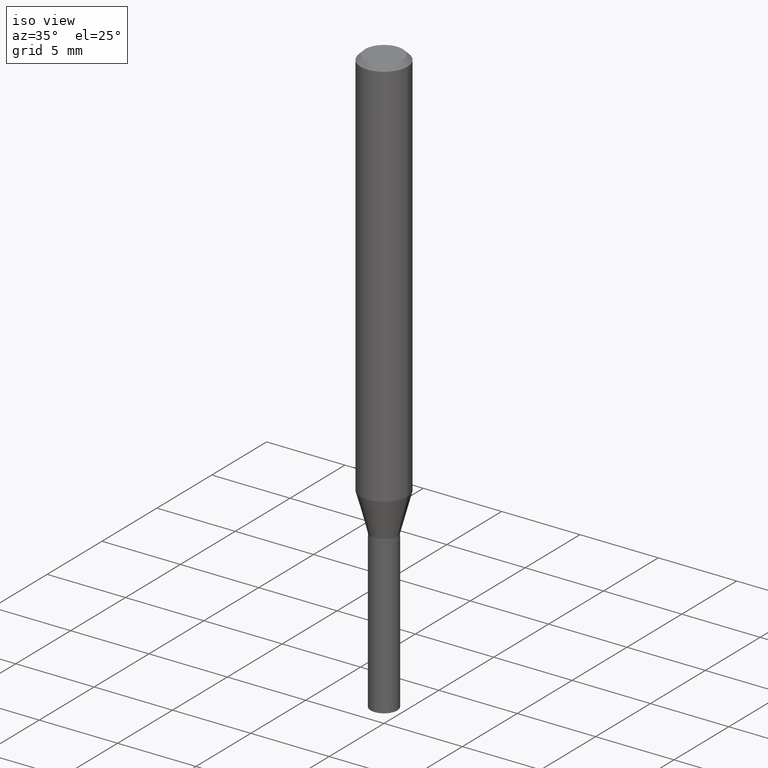
[diagram: clean part render]
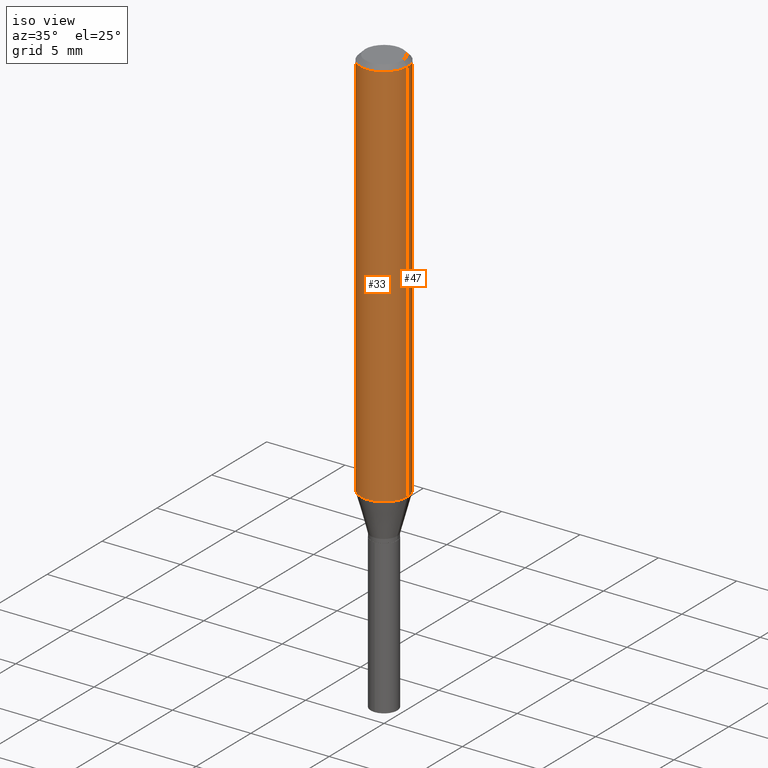
[diagram: same view with one multi-face feature highlighted, each face labeled with its STEP entity id]
A machine part, iso view. The highlighted faces form ONE feature: a constant-radius fillet chain: 2 tangent blend faces with common blend radius 1.4999 mm. The faces share edges in the B-rep.
Their STEP definitions:
[1] entity #33 (Cylinder):
#2 = EDGE_CURVE ( 'NONE', #275, #187, #239, .T. ) ;
#8 = FACE_OUTER_BOUND ( 'NONE', #338, .T. ) ;
#31 = DIRECTION ( 'NONE',  ( 1.000000000000000000, -6.982962677686266711E-15, 0.000000000000000000 ) ) ;
#33 = ADVANCED_FACE ( 'NONE', ( #8 ), #381, .T. ) ;
#49 = DIRECTION ( 'NONE',  ( 1.000000000000000000, -6.982962677686266711E-15, 4.876176775795935793E-29 ) ) ;
#58 = VECTOR ( 'NONE', #238, 39.37007874015748143 ) ;
#69 = ORIENTED_EDGE ( 'NONE', *, *, #266, .T. ) ;
#70 = EDGE_CURVE ( 'NONE', #187, #190, #242, .T. ) ;
#80 = ORIENTED_EDGE ( 'NONE', *, *, #387, .T. ) ;
#101 = CARTESIAN_POINT ( 'NONE',  ( -0.05905000000000011628, -3.030752074152826708E-15, -0.9882130891647225024 ) ) ;
#112 = ORIENTED_EDGE ( 'NONE', *, *, #70, .F. ) ;
#114 = DIRECTION ( 'NONE',  ( -2.445468806185136597E-29, 3.491481338843145583E-15, 1.000000000000000000 ) ) ;
#118 = LINE ( 'NONE', #276, #58 ) ;
#156 = DIRECTION ( 'NONE',  ( -2.445468806185136877E-29, 3.491481338843145188E-15, 1.000000000000000000 ) ) ;
#161 = CARTESIAN_POINT ( 'NONE',  ( 0.000000000000000000, 0.000000000000000000, 0.000000000000000000 ) ) ;
#186 = DIRECTION ( 'NONE',  ( -2.445468806185136597E-29, 3.491481338843145583E-15, 1.000000000000000000 ) ) ;
#187 = VERTEX_POINT ( 'NONE', #438 ) ;
#190 = VERTEX_POINT ( 'NONE', #478 ) ;
#191 = AXIS2_PLACEMENT_3D ( 'NONE', #161, #234, #49 ) ;
#234 = DIRECTION ( 'NONE',  ( -2.445468806185136597E-29, 3.491481338843145583E-15, 1.000000000000000000 ) ) ;
#235 = AXIS2_PLACEMENT_3D ( 'NONE', #302, #186, #31 ) ;
#237 = DIRECTION ( 'NONE',  ( 1.000000000000000000, -6.982962677686266711E-15, 0.000000000000000000 ) ) ;
#238 = DIRECTION ( 'NONE',  ( -2.445468806185136877E-29, 3.491481338843145188E-15, 1.000000000000000000 ) ) ;
#239 = LINE ( 'NONE', #424, #356 ) ;
#241 = CARTESIAN_POINT ( 'NONE',  ( 2.888098660104664204E-31, -4.123439461173780263E-17, -0.01181000000000007218 ) ) ;
#242 = CIRCLE ( 'NONE', #268, 0.05904999999999999832 ) ;
#258 = VERTEX_POINT ( 'NONE', #337 ) ;
#266 = EDGE_CURVE ( 'NONE', #275, #258, #378, .T. ) ;
#268 = AXIS2_PLACEMENT_3D ( 'NONE', #241, #114, #237 ) ;
#272 = ORIENTED_EDGE ( 'NONE', *, *, #2, .F. ) ;
#275 = VERTEX_POINT ( 'NONE', #101 ) ;
#276 = CARTESIAN_POINT ( 'NONE',  ( 0.05905000000000006077, -4.123439461173744764E-16, 2.879382386107503023E-30 ) ) ;
#302 = CARTESIAN_POINT ( 'NONE',  ( 2.416644283416180076E-29, -3.450327559619166201E-15, -0.9882130891647225024 ) ) ;
#337 = CARTESIAN_POINT ( 'NONE',  ( 0.05905000000000011628, -3.862671505736541121E-15, -0.9882130891647225024 ) ) ;
#338 = EDGE_LOOP ( 'NONE', ( #272, #69, #80, #112 ) ) ;
#356 = VECTOR ( 'NONE', #156, 39.37007874015748143 ) ;
#378 = CIRCLE ( 'NONE', #235, 0.05905000000000011628 ) ;
#381 = CYLINDRICAL_SURFACE ( 'NONE', #191, 0.05905000000000006077 ) ;
#387 = EDGE_CURVE ( 'NONE', #258, #190, #118, .T. ) ;
#424 = CARTESIAN_POINT ( 'NONE',  ( -0.05905000000000006077, 4.195754854663395916E-16, -2.904631170795524694E-30 ) ) ;
#438 = CARTESIAN_POINT ( 'NONE',  ( -0.05904999999999999832, -1.326205491649111683E-15, -0.01181000000000007218 ) ) ;
#478 = CARTESIAN_POINT ( 'NONE',  ( 0.05904999999999999832, -4.535783407291118600E-16, -0.01181000000000007218 ) ) ;
[2] entity #47 (Cylinder):
#2 = EDGE_CURVE ( 'NONE', #275, #187, #239, .T. ) ;
#4 = CIRCLE ( 'NONE', #407, 0.05904999999999999832 ) ;
#46 = DIRECTION ( 'NONE',  ( 1.000000000000000000, -6.982962677686266711E-15, 0.000000000000000000 ) ) ;
#47 = ADVANCED_FACE ( 'NONE', ( #195 ), #201, .T. ) ;
#58 = VECTOR ( 'NONE', #238, 39.37007874015748143 ) ;
#88 = ORIENTED_EDGE ( 'NONE', *, *, #387, .F. ) ;
#90 = AXIS2_PLACEMENT_3D ( 'NONE', #160, #379, #386 ) ;
#101 = CARTESIAN_POINT ( 'NONE',  ( -0.05905000000000011628, -3.030752074152826708E-15, -0.9882130891647225024 ) ) ;
#118 = LINE ( 'NONE', #276, #58 ) ;
#121 = DIRECTION ( 'NONE',  ( 1.000000000000000000, -6.982962677686266711E-15, 4.876176775795935793E-29 ) ) ;
#156 = DIRECTION ( 'NONE',  ( -2.445468806185136877E-29, 3.491481338843145188E-15, 1.000000000000000000 ) ) ;
#160 = CARTESIAN_POINT ( 'NONE',  ( 2.416644283416180076E-29, -3.450327559619166201E-15, -0.9882130891647225024 ) ) ;
#187 = VERTEX_POINT ( 'NONE', #438 ) ;
#190 = VERTEX_POINT ( 'NONE', #478 ) ;
#195 = FACE_OUTER_BOUND ( 'NONE', #294, .T. ) ;
#197 = CARTESIAN_POINT ( 'NONE',  ( 0.000000000000000000, 0.000000000000000000, 0.000000000000000000 ) ) ;
#201 = CYLINDRICAL_SURFACE ( 'NONE', #421, 0.05905000000000006077 ) ;
#222 = ORIENTED_EDGE ( 'NONE', *, *, #459, .F. ) ;
#238 = DIRECTION ( 'NONE',  ( -2.445468806185136877E-29, 3.491481338843145188E-15, 1.000000000000000000 ) ) ;
#239 = LINE ( 'NONE', #424, #356 ) ;
#258 = VERTEX_POINT ( 'NONE', #337 ) ;
#275 = VERTEX_POINT ( 'NONE', #101 ) ;
#276 = CARTESIAN_POINT ( 'NONE',  ( 0.05905000000000006077, -4.123439461173744764E-16, 2.879382386107503023E-30 ) ) ;
#278 = CIRCLE ( 'NONE', #90, 0.05905000000000011628 ) ;
#294 = EDGE_LOOP ( 'NONE', ( #363, #417, #222, #88 ) ) ;
#337 = CARTESIAN_POINT ( 'NONE',  ( 0.05905000000000011628, -3.862671505736541121E-15, -0.9882130891647225024 ) ) ;
#356 = VECTOR ( 'NONE', #156, 39.37007874015748143 ) ;
#363 = ORIENTED_EDGE ( 'NONE', *, *, #372, .T. ) ;
#372 = EDGE_CURVE ( 'NONE', #258, #275, #278, .T. ) ;
#377 = DIRECTION ( 'NONE',  ( -2.445468806185136597E-29, 3.491481338843145583E-15, 1.000000000000000000 ) ) ;
#379 = DIRECTION ( 'NONE',  ( -2.445468806185136597E-29, 3.491481338843145583E-15, 1.000000000000000000 ) ) ;
#383 = DIRECTION ( 'NONE',  ( -2.445468806185136597E-29, 3.491481338843145583E-15, 1.000000000000000000 ) ) ;
#386 = DIRECTION ( 'NONE',  ( 1.000000000000000000, -6.982962677686266711E-15, 0.000000000000000000 ) ) ;
#387 = EDGE_CURVE ( 'NONE', #258, #190, #118, .T. ) ;
#407 = AXIS2_PLACEMENT_3D ( 'NONE', #427, #383, #46 ) ;
#417 = ORIENTED_EDGE ( 'NONE', *, *, #2, .T. ) ;
#421 = AXIS2_PLACEMENT_3D ( 'NONE', #197, #377, #121 ) ;
#424 = CARTESIAN_POINT ( 'NONE',  ( -0.05905000000000006077, 4.195754854663395916E-16, -2.904631170795524694E-30 ) ) ;
#427 = CARTESIAN_POINT ( 'NONE',  ( 2.888098660104664204E-31, -4.123439461173780263E-17, -0.01181000000000007218 ) ) ;
#438 = CARTESIAN_POINT ( 'NONE',  ( -0.05904999999999999832, -1.326205491649111683E-15, -0.01181000000000007218 ) ) ;
#459 = EDGE_CURVE ( 'NONE', #190, #187, #4, .T. ) ;
#478 = CARTESIAN_POINT ( 'NONE',  ( 0.05904999999999999832, -4.535783407291118600E-16, -0.01181000000000007218 ) ) ;